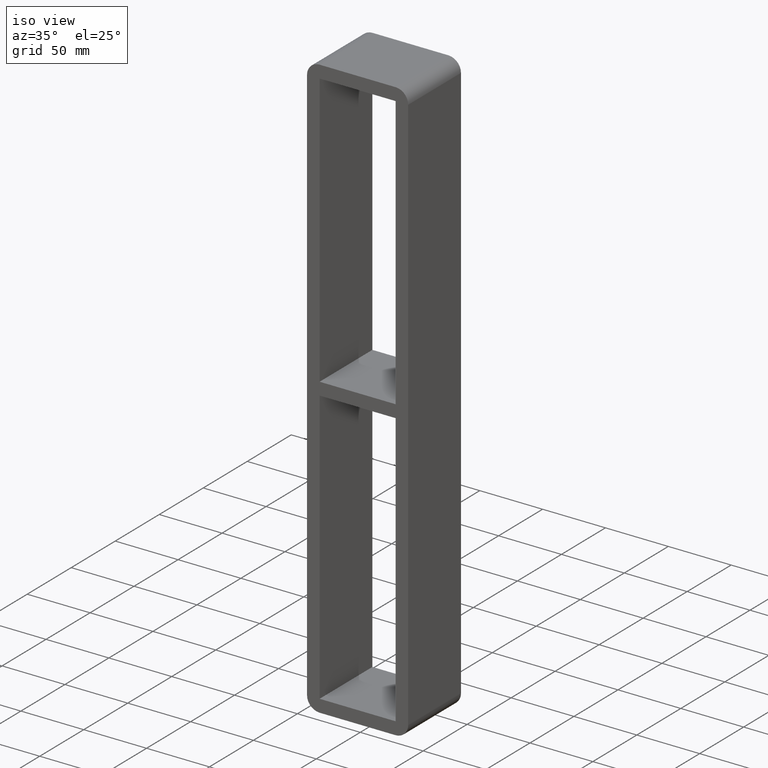
[diagram: clean part render]
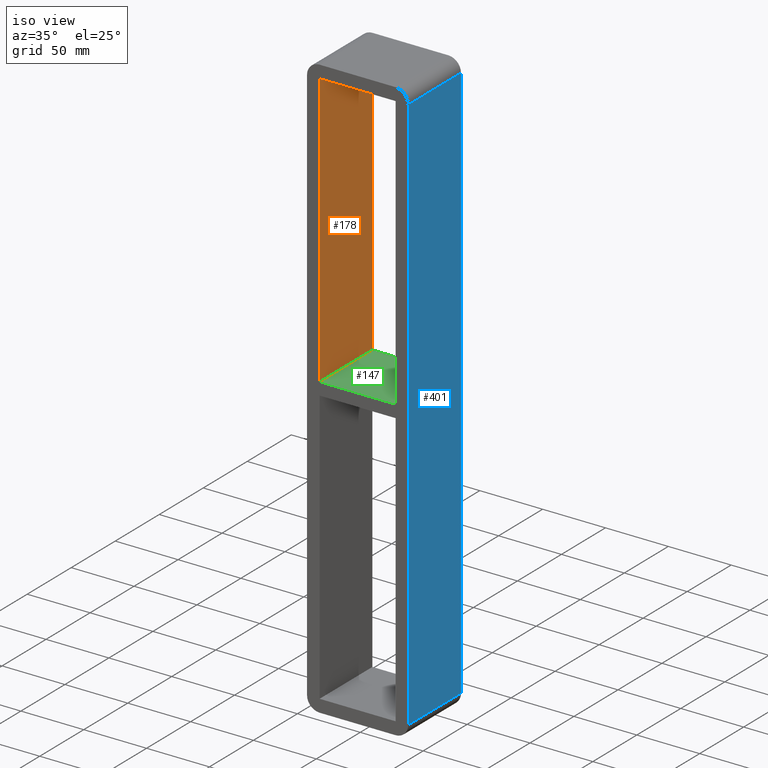
[diagram: same view with three faces highlighted in distinct colors, each labeled with its STEP entity id]
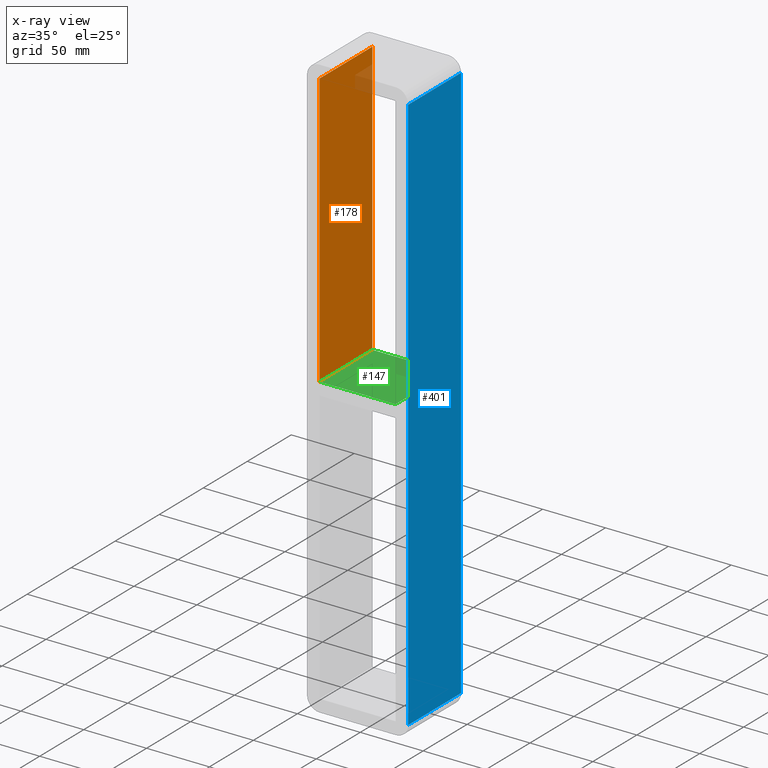
[diagram: x-ray of the same camera — body ghosted, the three highlighted faces saturated]
A machine part, iso view with three faces highlighted in distinct colors.
The next image is the same camera in x-ray (body ghosted, the three faces saturated) — at least one of them is partly hidden behind the body in this view.
Their STEP definitions:

[orange] entity #178 — the highlighted planar face has unit normal (-1, 0, 0).
#113=CARTESIAN_POINT('',(-30.249999999999694,-3.0,5.0));
#114=VERTEX_POINT('',#113);
#131=CARTESIAN_POINT('',(-30.249999999999694,57.0,5.0));
#132=VERTEX_POINT('',#131);
#139=CARTESIAN_POINT('',(-30.250000000000004,-3.0,5.0));
#140=DIRECTION('',(0.0,1.0,0.0));
#141=VECTOR('',#140,60.000000000000007);
#142=LINE('',#139,#141);
#143=EDGE_CURVE('',#114,#132,#142,.T.);
#148=CARTESIAN_POINT('',(-30.250000000000004,0.0,-223.00000000000006));
#149=DIRECTION('',(-1.0,0.0,0.0));
#150=DIRECTION('',(0.0,0.0,1.0));
#151=AXIS2_PLACEMENT_3D('',#148,#149,#150);
#152=PLANE('',#151);
#153=ORIENTED_EDGE('',*,*,#143,.T.);
#154=CARTESIAN_POINT('',(-30.250000000000004,57.0,223.00000000000006));
#155=VERTEX_POINT('',#154);
#156=CARTESIAN_POINT('',(-30.250000000000004,57.0,223.0));
#157=DIRECTION('',(0.0,0.0,-1.0));
#158=VECTOR('',#157,218.0);
#159=LINE('',#156,#158);
#160=EDGE_CURVE('',#155,#132,#159,.T.);
#161=ORIENTED_EDGE('',*,*,#160,.F.);
#162=CARTESIAN_POINT('',(-30.250000000000004,-3.0,223.00000000000006));
#163=VERTEX_POINT('',#162);
#164=CARTESIAN_POINT('',(-30.250000000000004,-3.0,223.00000000000006));
#165=DIRECTION('',(0.0,1.0,0.0));
#166=VECTOR('',#165,60.0);
#167=LINE('',#164,#166);
#168=EDGE_CURVE('',#163,#155,#167,.T.);
#169=ORIENTED_EDGE('',*,*,#168,.F.);
#170=CARTESIAN_POINT('',(-30.250000000000004,-3.0,5.0));
#171=DIRECTION('',(0.0,0.0,1.0));
#172=VECTOR('',#171,218.0);
#173=LINE('',#170,#172);
#174=EDGE_CURVE('',#114,#163,#173,.T.);
#175=ORIENTED_EDGE('',*,*,#174,.F.);
#176=EDGE_LOOP('',(#153,#161,#169,#175));
#177=FACE_OUTER_BOUND('',#176,.T.);
#178=ADVANCED_FACE('',(#177),#152,.F.);

[blue] entity #401 — the highlighted planar face has unit normal (1, 0, 0).
#248=CARTESIAN_POINT('',(40.25,57.0,-222.99999999999997));
#249=VERTEX_POINT('',#248);
#257=CARTESIAN_POINT('',(40.25,-3.0,-222.99999999999997));
#258=VERTEX_POINT('',#257);
#259=CARTESIAN_POINT('',(40.25,57.0,-222.99999999999997));
#260=DIRECTION('',(0.0,-1.0,0.0));
#261=VECTOR('',#260,60.0);
#262=LINE('',#259,#261);
#263=EDGE_CURVE('',#249,#258,#262,.T.);
#289=CARTESIAN_POINT('',(40.25,-3.0,223.00000000000006));
#290=VERTEX_POINT('',#289);
#291=CARTESIAN_POINT('',(40.25,-3.0,-222.99999999999994));
#292=DIRECTION('',(0.0,0.0,1.0));
#293=VECTOR('',#292,446.0);
#294=LINE('',#291,#293);
#295=EDGE_CURVE('',#258,#290,#294,.T.);
#378=CARTESIAN_POINT('',(40.25,0.0,233.00000000000006));
#379=DIRECTION('',(1.0,0.0,0.0));
#380=DIRECTION('',(0.0,0.0,-1.0));
#381=AXIS2_PLACEMENT_3D('',#378,#379,#380);
#382=PLANE('',#381);
#383=ORIENTED_EDGE('',*,*,#263,.F.);
#384=CARTESIAN_POINT('',(40.25,57.0,223.00000000000006));
#385=VERTEX_POINT('',#384);
#386=CARTESIAN_POINT('',(40.25,57.0,223.00000000000006));
#387=DIRECTION('',(0.0,0.0,-1.0));
#388=VECTOR('',#387,446.0);
#389=LINE('',#386,#388);
#390=EDGE_CURVE('',#385,#249,#389,.T.);
#391=ORIENTED_EDGE('',*,*,#390,.F.);
#392=CARTESIAN_POINT('',(40.25,-3.0,223.00000000000006));
#393=DIRECTION('',(0.0,1.0,0.0));
#394=VECTOR('',#393,60.0);
#395=LINE('',#392,#394);
#396=EDGE_CURVE('',#290,#385,#395,.T.);
#397=ORIENTED_EDGE('',*,*,#396,.F.);
#398=ORIENTED_EDGE('',*,*,#295,.F.);
#399=EDGE_LOOP('',(#383,#391,#397,#398));
#400=FACE_OUTER_BOUND('',#399,.T.);
#401=ADVANCED_FACE('',(#400),#382,.T.);

[green] entity #147 — the highlighted planar face has unit normal (0, 0, 1).
#108=CARTESIAN_POINT('',(-30.249999999999694,-3.0,5.0));
#109=DIRECTION('',(0.0,0.0,1.0));
#110=DIRECTION('',(1.0,0.0,0.0));
#111=AXIS2_PLACEMENT_3D('',#108,#109,#110);
#112=PLANE('',#111);
#113=CARTESIAN_POINT('',(-30.249999999999694,-3.0,5.0));
#114=VERTEX_POINT('',#113);
#115=CARTESIAN_POINT('',(30.249999999999897,-3.0,5.0));
#116=VERTEX_POINT('',#115);
#117=CARTESIAN_POINT('',(-30.249999999999694,-3.0,5.0));
#118=DIRECTION('',(1.0,0.0,0.0));
#119=VECTOR('',#118,60.499999999999588);
#120=LINE('',#117,#119);
#121=EDGE_CURVE('',#114,#116,#120,.T.);
#122=ORIENTED_EDGE('',*,*,#121,.T.);
#123=CARTESIAN_POINT('',(30.249999999999897,57.0,5.0));
#124=VERTEX_POINT('',#123);
#125=CARTESIAN_POINT('',(30.250000000000004,57.000000000000007,5.0));
#126=DIRECTION('',(0.0,-1.0,0.0));
#127=VECTOR('',#126,60.000000000000007);
#128=LINE('',#125,#127);
#129=EDGE_CURVE('',#124,#116,#128,.T.);
#130=ORIENTED_EDGE('',*,*,#129,.F.);
#131=CARTESIAN_POINT('',(-30.249999999999694,57.0,5.0));
#132=VERTEX_POINT('',#131);
#133=CARTESIAN_POINT('',(-30.249999999999694,57.0,5.0));
#134=DIRECTION('',(1.0,0.0,0.0));
#135=VECTOR('',#134,60.499999999999588);
#136=LINE('',#133,#135);
#137=EDGE_CURVE('',#132,#124,#136,.T.);
#138=ORIENTED_EDGE('',*,*,#137,.F.);
#139=CARTESIAN_POINT('',(-30.250000000000004,-3.0,5.0));
#140=DIRECTION('',(0.0,1.0,0.0));
#141=VECTOR('',#140,60.000000000000007);
#142=LINE('',#139,#141);
#143=EDGE_CURVE('',#114,#132,#142,.T.);
#144=ORIENTED_EDGE('',*,*,#143,.F.);
#145=EDGE_LOOP('',(#122,#130,#138,#144));
#146=FACE_OUTER_BOUND('',#145,.T.);
#147=ADVANCED_FACE('',(#146),#112,.T.);